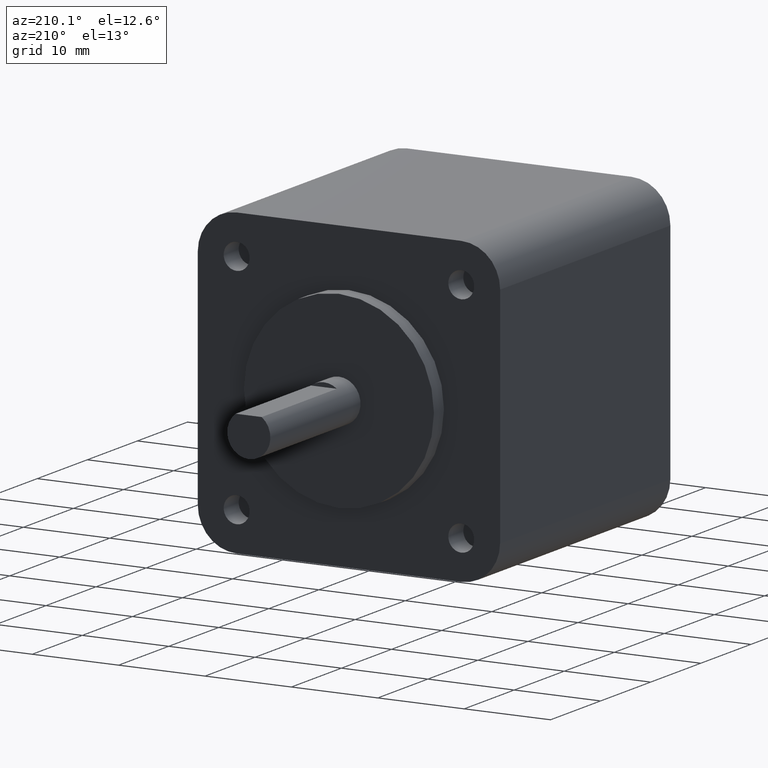
[diagram: clean part render]
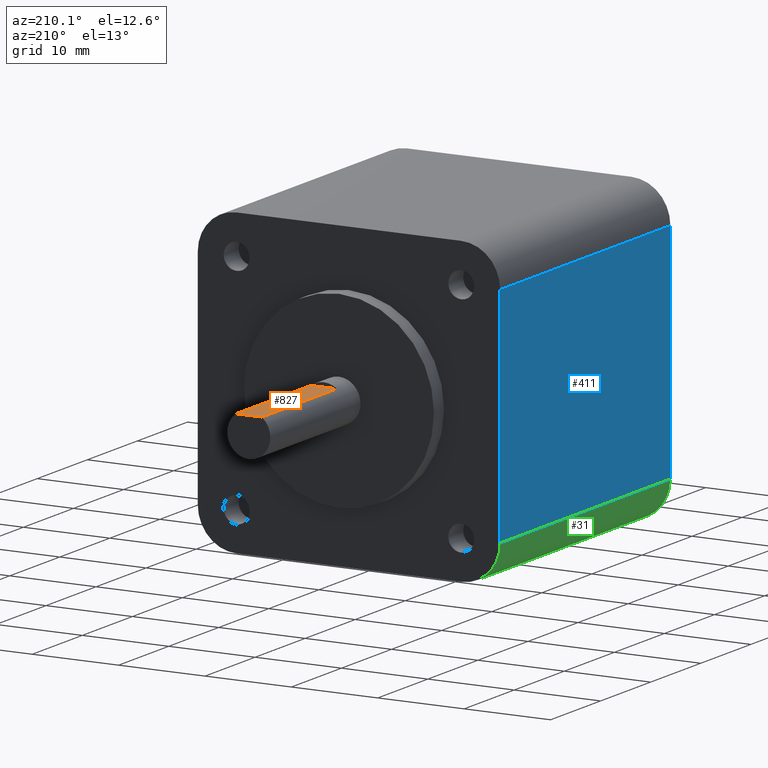
[diagram: same view with three faces highlighted in distinct colors, each labeled with its STEP entity id]
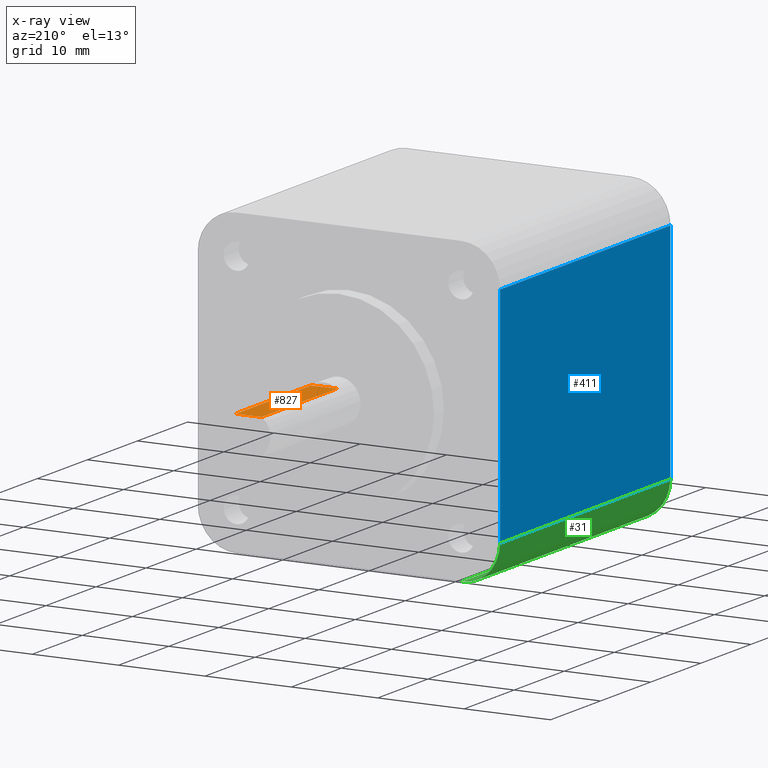
[diagram: x-ray of the same camera — body ghosted, the three highlighted faces saturated]
A machine part, auxiliary view with three faces highlighted in distinct colors.
The next image is the same camera in x-ray (body ghosted, the three faces saturated) — at least one of them is partly hidden behind the body in this view.
Their STEP definitions:

[orange] entity #827 — the highlighted planar face has unit normal (-0, 0, -1).
#17 = CARTESIAN_POINT ( 'NONE',  ( -1.500000000000000200, 39.00000000000000700, 2.000000000000000000 ) ) ;
#28 = DIRECTION ( 'NONE',  ( -1.000000000000000000, 0.0000000000000000000, 2.891205793294677300E-016 ) ) ;
#48 = FACE_OUTER_BOUND ( 'NONE', #735, .T. ) ;
#116 = LINE ( 'NONE', #489, #182 ) ;
#151 = AXIS2_PLACEMENT_3D ( 'NONE', #504, #502, #28 ) ;
#156 = VERTEX_POINT ( 'NONE', #777 ) ;
#158 = LINE ( 'NONE', #815, #219 ) ;
#182 = VECTOR ( 'NONE', #616, 1000.000000000000000 ) ;
#219 = VECTOR ( 'NONE', #480, 1000.000000000000000 ) ;
#294 = ORIENTED_EDGE ( 'NONE', *, *, #678, .T. ) ;
#451 = LINE ( 'NONE', #703, #695 ) ;
#480 = DIRECTION ( 'NONE',  ( -0.0000000000000000000, 1.000000000000000000, -0.0000000000000000000 ) ) ;
#489 = CARTESIAN_POINT ( 'NONE',  ( 1.500000000000001300, 39.00000000000000700, 1.999999999999999100 ) ) ;
#502 = DIRECTION ( 'NONE',  ( -2.891205793294677300E-016, 0.0000000000000000000, -1.000000000000000000 ) ) ;
#504 = CARTESIAN_POINT ( 'NONE',  ( -1.500000000000000200, 39.00000000000000700, 2.000000000000000000 ) ) ;
#507 = ORIENTED_EDGE ( 'NONE', *, *, #782, .F. ) ;
#534 = CARTESIAN_POINT ( 'NONE',  ( 1.500000000000001300, 39.00000000000000700, 1.999999999999999100 ) ) ;
#544 = VERTEX_POINT ( 'NONE', #534 ) ;
#551 = EDGE_CURVE ( 'NONE', #156, #718, #725, .T. ) ;
#573 = ORIENTED_EDGE ( 'NONE', *, *, #551, .T. ) ;
#591 = CARTESIAN_POINT ( 'NONE',  ( -1.500000000000000200, 54.00000000000000700, 2.000000000000000000 ) ) ;
#598 = DIRECTION ( 'NONE',  ( -1.000000000000000000, -0.0000000000000000000, 2.891205793294676800E-016 ) ) ;
#616 = DIRECTION ( 'NONE',  ( -0.0000000000000000000, 1.000000000000000000, -0.0000000000000000000 ) ) ;
#621 = EDGE_CURVE ( 'NONE', #693, #718, #158, .T. ) ;
#644 = PLANE ( 'NONE',  #151 ) ;
#652 = ORIENTED_EDGE ( 'NONE', *, *, #621, .F. ) ;
#654 = VECTOR ( 'NONE', #598, 1000.000000000000000 ) ;
#678 = EDGE_CURVE ( 'NONE', #544, #156, #116, .T. ) ;
#691 = CARTESIAN_POINT ( 'NONE',  ( -1.500000000000000200, 54.00000000000000700, 2.000000000000000000 ) ) ;
#693 = VERTEX_POINT ( 'NONE', #17 ) ;
#695 = VECTOR ( 'NONE', #840, 1000.000000000000000 ) ;
#703 = CARTESIAN_POINT ( 'NONE',  ( -1.500000000000000200, 39.00000000000000700, 2.000000000000000000 ) ) ;
#718 = VERTEX_POINT ( 'NONE', #691 ) ;
#725 = LINE ( 'NONE', #591, #654 ) ;
#735 = EDGE_LOOP ( 'NONE', ( #573, #652, #507, #294 ) ) ;
#777 = CARTESIAN_POINT ( 'NONE',  ( 1.500000000000001300, 54.00000000000000700, 1.999999999999999100 ) ) ;
#782 = EDGE_CURVE ( 'NONE', #544, #693, #451, .T. ) ;
#815 = CARTESIAN_POINT ( 'NONE',  ( -1.500000000000000200, 39.00000000000000700, 2.000000000000000000 ) ) ;
#827 = ADVANCED_FACE ( 'NONE', ( #48 ), #644, .F. ) ;
#840 = DIRECTION ( 'NONE',  ( -1.000000000000000000, -0.0000000000000000000, 2.891205793294676800E-016 ) ) ;

[blue] entity #411 — the highlighted planar face has unit normal (1, 0, -0).
#5 = DIRECTION ( 'NONE',  ( 9.912705577010325500E-017, 0.0000000000000000000, 1.000000000000000000 ) ) ;
#7 = EDGE_CURVE ( 'NONE', #676, #91, #157, .T. ) ;
#12 = CARTESIAN_POINT ( 'NONE',  ( -17.49999999999999600, 0.0000000000000000000, 12.99999999999999800 ) ) ;
#32 = CARTESIAN_POINT ( 'NONE',  ( -17.50000000000000000, 0.0000000000000000000, -13.00000000000000000 ) ) ;
#68 = CARTESIAN_POINT ( 'NONE',  ( -17.50000000000000000, 0.0000000000000000000, -17.50000000000000000 ) ) ;
#91 = VERTEX_POINT ( 'NONE', #329 ) ;
#124 = EDGE_CURVE ( 'NONE', #450, #676, #304, .T. ) ;
#157 = LINE ( 'NONE', #527, #716 ) ;
#205 = LINE ( 'NONE', #32, #308 ) ;
#221 = VECTOR ( 'NONE', #503, 1000.000000000000000 ) ;
#239 = CARTESIAN_POINT ( 'NONE',  ( -17.50000000000000000, 34.00000000000000000, -17.50000000000000000 ) ) ;
#271 = EDGE_CURVE ( 'NONE', #484, #91, #404, .T. ) ;
#286 = AXIS2_PLACEMENT_3D ( 'NONE', #239, #862, #645 ) ;
#296 = DIRECTION ( 'NONE',  ( -0.0000000000000000000, 1.000000000000000000, -0.0000000000000000000 ) ) ;
#304 = LINE ( 'NONE', #68, #463 ) ;
#308 = VECTOR ( 'NONE', #296, 1000.000000000000000 ) ;
#315 = ORIENTED_EDGE ( 'NONE', *, *, #812, .F. ) ;
#325 = CARTESIAN_POINT ( 'NONE',  ( -17.50000000000000000, 34.00000000000000000, -13.00000000000000000 ) ) ;
#329 = CARTESIAN_POINT ( 'NONE',  ( -17.49999999999999600, 34.00000000000000000, 13.00000000000000000 ) ) ;
#359 = ORIENTED_EDGE ( 'NONE', *, *, #271, .F. ) ;
#389 = DIRECTION ( 'NONE',  ( -0.0000000000000000000, 1.000000000000000000, -0.0000000000000000000 ) ) ;
#404 = LINE ( 'NONE', #707, #221 ) ;
#411 = ADVANCED_FACE ( 'NONE', ( #449 ), #656, .F. ) ;
#449 = FACE_OUTER_BOUND ( 'NONE', #692, .T. ) ;
#450 = VERTEX_POINT ( 'NONE', #588 ) ;
#463 = VECTOR ( 'NONE', #5, 1000.000000000000000 ) ;
#484 = VERTEX_POINT ( 'NONE', #325 ) ;
#503 = DIRECTION ( 'NONE',  ( 9.912705577010325500E-017, 0.0000000000000000000, 1.000000000000000000 ) ) ;
#527 = CARTESIAN_POINT ( 'NONE',  ( -17.49999999999999600, 0.0000000000000000000, 13.00000000000000000 ) ) ;
#560 = ORIENTED_EDGE ( 'NONE', *, *, #7, .T. ) ;
#588 = CARTESIAN_POINT ( 'NONE',  ( -17.50000000000000000, 0.0000000000000000000, -13.00000000000000000 ) ) ;
#645 = DIRECTION ( 'NONE',  ( -9.912705577010325500E-017, 0.0000000000000000000, -1.000000000000000000 ) ) ;
#656 = PLANE ( 'NONE',  #286 ) ;
#676 = VERTEX_POINT ( 'NONE', #12 ) ;
#692 = EDGE_LOOP ( 'NONE', ( #359, #315, #776, #560 ) ) ;
#707 = CARTESIAN_POINT ( 'NONE',  ( -17.50000000000000000, 34.00000000000000000, -17.50000000000000000 ) ) ;
#716 = VECTOR ( 'NONE', #389, 1000.000000000000000 ) ;
#776 = ORIENTED_EDGE ( 'NONE', *, *, #124, .T. ) ;
#812 = EDGE_CURVE ( 'NONE', #450, #484, #205, .T. ) ;
#862 = DIRECTION ( 'NONE',  ( 1.000000000000000000, 0.0000000000000000000, -9.912705577010325500E-017 ) ) ;

[green] entity #31 — the highlighted cylindrical surface (partial cylindrical patch) has radius 4.5 mm, axis along (-0, 1, -0).
#14 = ORIENTED_EDGE ( 'NONE', *, *, #826, .F. ) ;
#23 = CIRCLE ( 'NONE', #867, 4.500000000000002700 ) ;
#31 = ADVANCED_FACE ( 'NONE', ( #672 ), #858, .T. ) ;
#32 = CARTESIAN_POINT ( 'NONE',  ( -17.50000000000000000, 0.0000000000000000000, -13.00000000000000000 ) ) ;
#54 = DIRECTION ( 'NONE',  ( -0.0000000000000000000, 1.000000000000000000, -0.0000000000000000000 ) ) ;
#69 = DIRECTION ( 'NONE',  ( -0.0000000000000000000, -1.000000000000000000, -0.0000000000000000000 ) ) ;
#166 = DIRECTION ( 'NONE',  ( -0.0000000000000000000, -1.000000000000000000, -0.0000000000000000000 ) ) ;
#175 = VERTEX_POINT ( 'NONE', #397 ) ;
#193 = ORIENTED_EDGE ( 'NONE', *, *, #582, .T. ) ;
#199 = DIRECTION ( 'NONE',  ( 0.0000000000000000000, 0.0000000000000000000, 1.000000000000000000 ) ) ;
#205 = LINE ( 'NONE', #32, #308 ) ;
#241 = CIRCLE ( 'NONE', #291, 4.500000000000002700 ) ;
#291 = AXIS2_PLACEMENT_3D ( 'NONE', #572, #166, #374 ) ;
#296 = DIRECTION ( 'NONE',  ( -0.0000000000000000000, 1.000000000000000000, -0.0000000000000000000 ) ) ;
#308 = VECTOR ( 'NONE', #296, 1000.000000000000000 ) ;
#325 = CARTESIAN_POINT ( 'NONE',  ( -17.50000000000000000, 34.00000000000000000, -13.00000000000000000 ) ) ;
#337 = EDGE_LOOP ( 'NONE', ( #193, #617, #14, #845 ) ) ;
#374 = DIRECTION ( 'NONE',  ( 0.0000000000000000000, 0.0000000000000000000, 1.000000000000000000 ) ) ;
#397 = CARTESIAN_POINT ( 'NONE',  ( -12.99999999999999800, 0.0000000000000000000, -17.50000000000000000 ) ) ;
#450 = VERTEX_POINT ( 'NONE', #588 ) ;
#452 = VERTEX_POINT ( 'NONE', #526 ) ;
#484 = VERTEX_POINT ( 'NONE', #325 ) ;
#526 = CARTESIAN_POINT ( 'NONE',  ( -12.99999999999999800, 34.00000000000000000, -17.50000000000000000 ) ) ;
#572 = CARTESIAN_POINT ( 'NONE',  ( -13.00000000000000000, 0.0000000000000000000, -13.00000000000000000 ) ) ;
#582 = EDGE_CURVE ( 'NONE', #484, #452, #23, .T. ) ;
#588 = CARTESIAN_POINT ( 'NONE',  ( -17.50000000000000000, 0.0000000000000000000, -13.00000000000000000 ) ) ;
#589 = DIRECTION ( 'NONE',  ( 0.0000000000000000000, 0.0000000000000000000, 1.000000000000000000 ) ) ;
#599 = CARTESIAN_POINT ( 'NONE',  ( -13.00000000000000000, 0.0000000000000000000, -13.00000000000000000 ) ) ;
#617 = ORIENTED_EDGE ( 'NONE', *, *, #721, .F. ) ;
#672 = FACE_OUTER_BOUND ( 'NONE', #337, .T. ) ;
#721 = EDGE_CURVE ( 'NONE', #175, #452, #834, .T. ) ;
#759 = CARTESIAN_POINT ( 'NONE',  ( -12.99999999999999800, 0.0000000000000000000, -17.50000000000000000 ) ) ;
#760 = AXIS2_PLACEMENT_3D ( 'NONE', #599, #54, #589 ) ;
#812 = EDGE_CURVE ( 'NONE', #450, #484, #205, .T. ) ;
#825 = DIRECTION ( 'NONE',  ( -0.0000000000000000000, 1.000000000000000000, -0.0000000000000000000 ) ) ;
#826 = EDGE_CURVE ( 'NONE', #450, #175, #241, .T. ) ;
#834 = LINE ( 'NONE', #759, #882 ) ;
#845 = ORIENTED_EDGE ( 'NONE', *, *, #812, .T. ) ;
#858 = CYLINDRICAL_SURFACE ( 'NONE', #760, 4.500000000000002700 ) ;
#867 = AXIS2_PLACEMENT_3D ( 'NONE', #890, #69, #199 ) ;
#882 = VECTOR ( 'NONE', #825, 1000.000000000000000 ) ;
#890 = CARTESIAN_POINT ( 'NONE',  ( -13.00000000000000000, 34.00000000000000000, -13.00000000000000000 ) ) ;